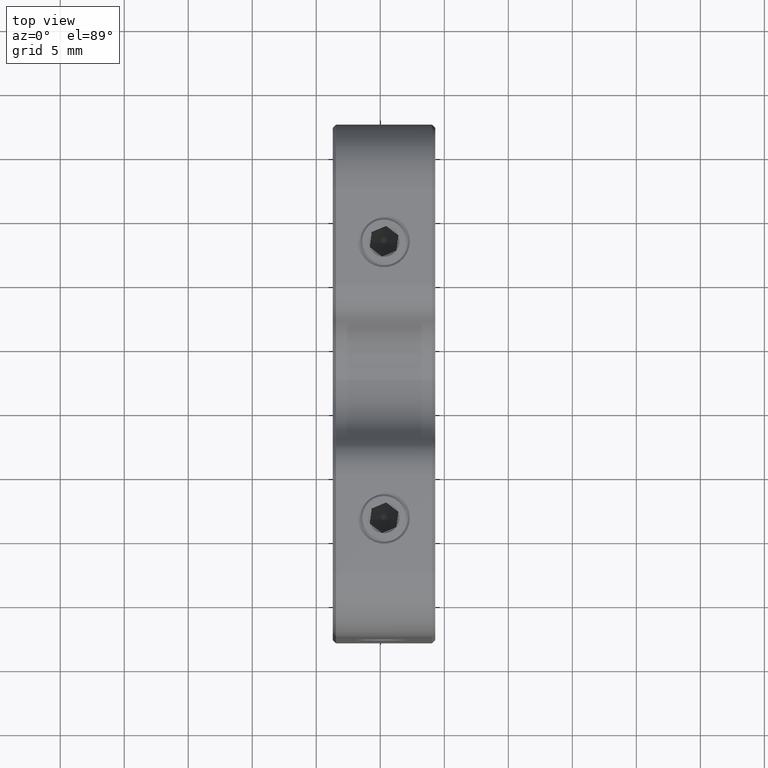
[diagram: clean part render]
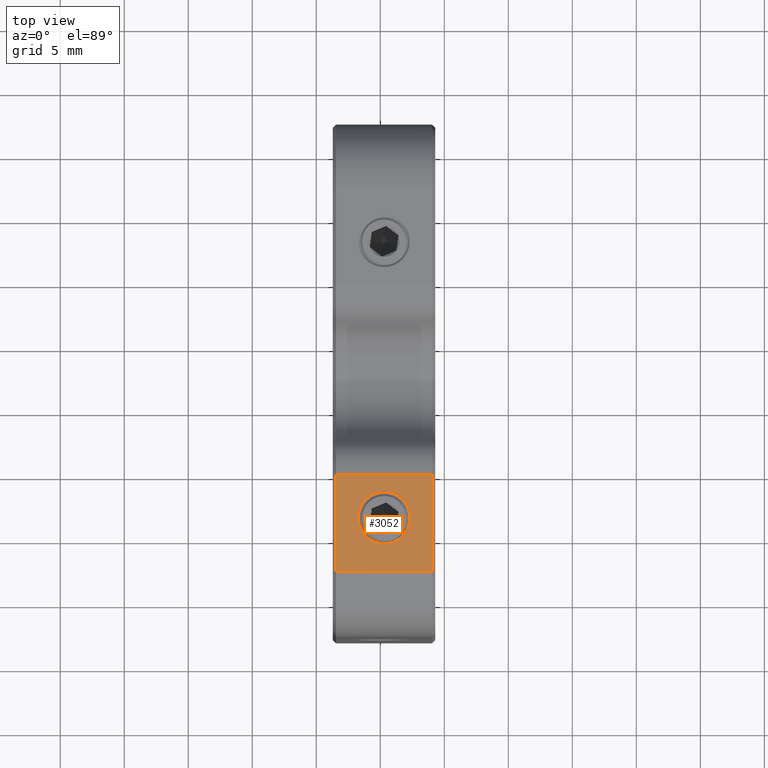
[diagram: same view with one face highlighted and labeled with its STEP entity id]
A machine part, top view. The second image highlights one B-rep face of the part: STEP entity #3052.
In plain terms, the highlighted planar face has unit normal (0, 0, -1).
Its self-contained STEP definition (entity closure, byte-faithful):
#239 = CARTESIAN_POINT ( 'NONE',  ( -14.70960063692994879, -8.690698776590892294, 60.00000000000001421 ) ) ;
#299 = VERTEX_POINT ( 'NONE', #306 ) ;
#306 = CARTESIAN_POINT ( 'NONE',  ( -10.95960063692994879, -12.89069877659089691, 60.00000000000001421 ) ) ;
#534 = CARTESIAN_POINT ( 'NONE',  ( -18.45960063692994879, 22.10930122340910842, 60.00000000000001421 ) ) ;
#582 = DIRECTION ( 'NONE',  ( 0.000000000000000000, -1.000000000000000000, -8.673617379884035472E-17 ) ) ;
#758 = VECTOR ( 'NONE', #2474, 1000.000000000000000 ) ;
#1500 = DIRECTION ( 'NONE',  ( -0.000000000000000000, -0.000000000000000000, 1.000000000000000000 ) ) ;
#1973 = LINE ( 'NONE', #534, #3377 ) ;
#1996 = DIRECTION ( 'NONE',  ( 0.000000000000000000, 1.000000000000000000, 8.673617379884035472E-17 ) ) ;
#2095 = ORIENTED_EDGE ( 'NONE', *, *, #3381, .F. ) ;
#2102 = FACE_BOUND ( 'NONE', #2340, .T. ) ;
#2208 = ORIENTED_EDGE ( 'NONE', *, *, #7585, .F. ) ;
#2299 = CARTESIAN_POINT ( 'NONE',  ( -12.68460063692995021, -8.690698776590892294, 60.00000000000001421 ) ) ;
#2340 = EDGE_LOOP ( 'NONE', ( #2208, #2095 ) ) ;
#2377 = AXIS2_PLACEMENT_3D ( 'NONE', #6756, #3130, #4427 ) ;
#2474 = DIRECTION ( 'NONE',  ( -1.000000000000000000, 0.000000000000000000, -0.000000000000000000 ) ) ;
#2583 = EDGE_CURVE ( 'NONE', #6992, #299, #3447, .T. ) ;
#2693 = CARTESIAN_POINT ( 'NONE',  ( -10.95960063692994879, -5.306897263686554567, 60.00000000000001421 ) ) ;
#2718 = EDGE_LOOP ( 'NONE', ( #3127, #5402, #3471, #4088 ) ) ;
#3052 = ADVANCED_FACE ( 'NONE', ( #2102, #6039 ), #3111, .F. ) ;
#3105 = AXIS2_PLACEMENT_3D ( 'NONE', #239, #5058, #6913 ) ;
#3111 = PLANE ( 'NONE',  #2377 ) ;
#3127 = ORIENTED_EDGE ( 'NONE', *, *, #3295, .T. ) ;
#3130 = DIRECTION ( 'NONE',  ( 0.000000000000000000, 8.673617379884035472E-17, -1.000000000000000000 ) ) ;
#3295 = EDGE_CURVE ( 'NONE', #6283, #4329, #4960, .T. ) ;
#3311 = CARTESIAN_POINT ( 'NONE',  ( -14.70960063692994879, -8.690698776590892294, 60.00000000000001421 ) ) ;
#3377 = VECTOR ( 'NONE', #582, 1000.000000000000000 ) ;
#3381 = EDGE_CURVE ( 'NONE', #5965, #4751, #7134, .T. ) ;
#3447 = LINE ( 'NONE', #5353, #4699 ) ;
#3460 = CARTESIAN_POINT ( 'NONE',  ( -16.73460063692994737, -8.690698776590892294, 60.00000000000001421 ) ) ;
#3471 = ORIENTED_EDGE ( 'NONE', *, *, #2583, .T. ) ;
#3524 = DIRECTION ( 'NONE',  ( 1.000000000000000000, -0.000000000000000000, -0.000000000000000000 ) ) ;
#3671 = CARTESIAN_POINT ( 'NONE',  ( -10.70960063692994879, -5.306897263686554567, 60.00000000000001421 ) ) ;
#3860 = VECTOR ( 'NONE', #1996, 1000.000000000000000 ) ;
#4088 = ORIENTED_EDGE ( 'NONE', *, *, #6017, .T. ) ;
#4329 = VERTEX_POINT ( 'NONE', #5064 ) ;
#4427 = DIRECTION ( 'NONE',  ( 0.000000000000000000, 1.000000000000000000, 8.673617379884035472E-17 ) ) ;
#4699 = VECTOR ( 'NONE', #3524, 1000.000000000000000 ) ;
#4751 = VERTEX_POINT ( 'NONE', #2299 ) ;
#4960 = LINE ( 'NONE', #3671, #758 ) ;
#5058 = DIRECTION ( 'NONE',  ( -0.000000000000000000, -0.000000000000000000, 1.000000000000000000 ) ) ;
#5064 = CARTESIAN_POINT ( 'NONE',  ( -18.45960063692994879, -5.306897263686554567, 60.00000000000001421 ) ) ;
#5292 = LINE ( 'NONE', #2693, #3860 ) ;
#5353 = CARTESIAN_POINT ( 'NONE',  ( -10.70960063692994879, -12.89069877659089691, 60.00000000000001421 ) ) ;
#5402 = ORIENTED_EDGE ( 'NONE', *, *, #6627, .T. ) ;
#5965 = VERTEX_POINT ( 'NONE', #3460 ) ;
#6017 = EDGE_CURVE ( 'NONE', #299, #6283, #5292, .T. ) ;
#6039 = FACE_OUTER_BOUND ( 'NONE', #2718, .T. ) ;
#6161 = CIRCLE ( 'NONE', #3105, 2.024999999999999023 ) ;
#6283 = VERTEX_POINT ( 'NONE', #7841 ) ;
#6482 = AXIS2_PLACEMENT_3D ( 'NONE', #3311, #1500, #7626 ) ;
#6627 = EDGE_CURVE ( 'NONE', #4329, #6992, #1973, .T. ) ;
#6756 = CARTESIAN_POINT ( 'NONE',  ( -10.70960063692994879, 22.10930122340910842, 60.00000000000001421 ) ) ;
#6913 = DIRECTION ( 'NONE',  ( 1.000000000000000000, 0.000000000000000000, 0.000000000000000000 ) ) ;
#6992 = VERTEX_POINT ( 'NONE', #7480 ) ;
#7134 = CIRCLE ( 'NONE', #6482, 2.024999999999999023 ) ;
#7480 = CARTESIAN_POINT ( 'NONE',  ( -18.45960063692994879, -12.89069877659089691, 60.00000000000001421 ) ) ;
#7585 = EDGE_CURVE ( 'NONE', #4751, #5965, #6161, .T. ) ;
#7626 = DIRECTION ( 'NONE',  ( 1.000000000000000000, 0.000000000000000000, 0.000000000000000000 ) ) ;
#7841 = CARTESIAN_POINT ( 'NONE',  ( -10.95960063692994879, -5.306897263686554567, 60.00000000000001421 ) ) ;